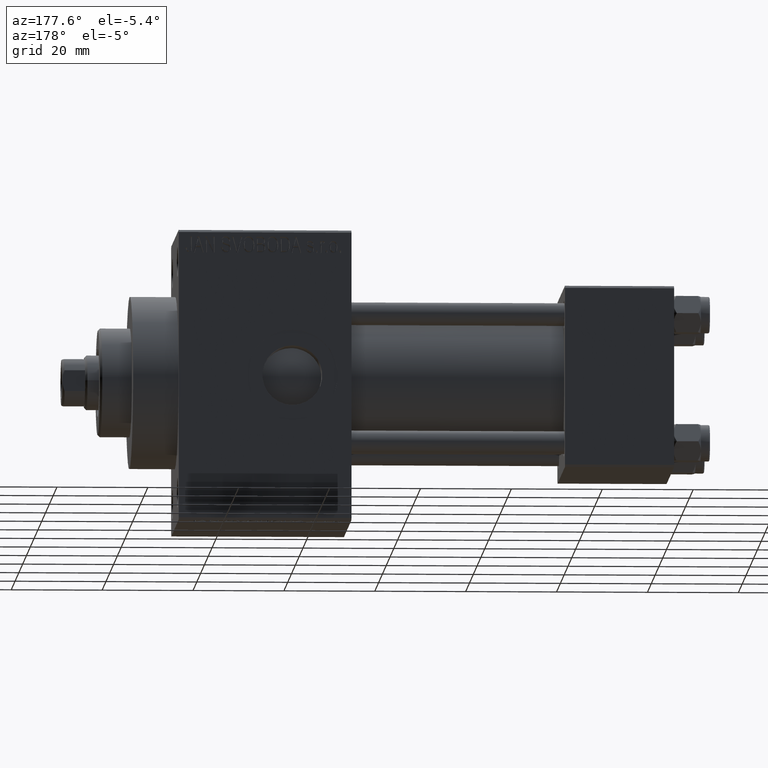
[diagram: clean part render]
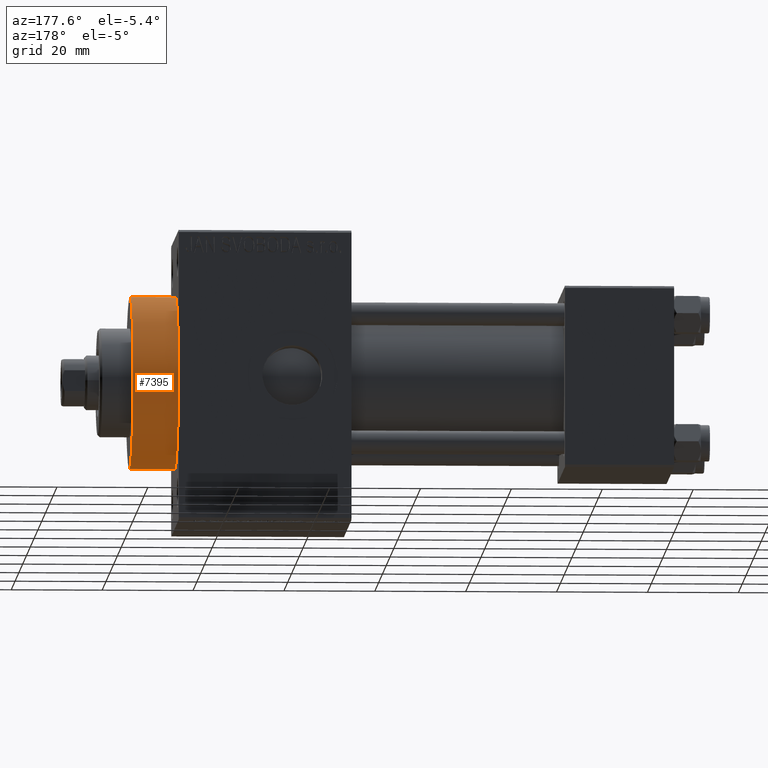
[diagram: same view with one face highlighted and labeled with its STEP entity id]
A machine part, auxiliary view. The second image highlights one B-rep face of the part: STEP entity #7395.
In plain terms, the highlighted cylindrical surface (partial cylindrical patch) has radius 19 mm, axis along (-1, -0, -0).
Its self-contained STEP definition (entity closure, byte-faithful):
#518 = AXIS2_PLACEMENT_3D ( 'NONE', #35463, #17375, #43535 ) ;
#2937 = DIRECTION ( 'NONE',  ( 0.000000000000000000, 0.000000000000000000, -1.000000000000000000 ) ) ;
#3686 = CARTESIAN_POINT ( 'NONE',  ( 109.0000000000000142, 0.000000000000000000, 19.00000000000000000 ) ) ;
#6514 = CIRCLE ( 'NONE', #25491, 19.00000000000000000 ) ;
#6738 = DIRECTION ( 'NONE',  ( 1.000000000000000000, 0.000000000000000000, 0.000000000000000000 ) ) ;
#7395 = ADVANCED_FACE ( 'NONE', ( #13274 ), #27768, .T. ) ;
#7505 = ORIENTED_EDGE ( 'NONE', *, *, #11135, .T. ) ;
#7736 = VERTEX_POINT ( 'NONE', #25766 ) ;
#11135 = EDGE_CURVE ( 'NONE', #40273, #30596, #43244, .T. ) ;
#12799 = DIRECTION ( 'NONE',  ( -1.000000000000000000, -0.000000000000000000, -0.000000000000000000 ) ) ;
#13159 = EDGE_CURVE ( 'NONE', #7736, #17704, #27311, .T. ) ;
#13274 = FACE_OUTER_BOUND ( 'NONE', #15244, .T. ) ;
#13284 = CARTESIAN_POINT ( 'NONE',  ( 119.0000000000000142, 0.000000000000000000, 19.00000000000000000 ) ) ;
#15244 = EDGE_LOOP ( 'NONE', ( #25704, #7505, #21625, #34030 ) ) ;
#16644 = AXIS2_PLACEMENT_3D ( 'NONE', #20382, #12799, #42756 ) ;
#17375 = DIRECTION ( 'NONE',  ( 1.000000000000000000, 0.000000000000000000, 0.000000000000000000 ) ) ;
#17704 = VERTEX_POINT ( 'NONE', #3686 ) ;
#20382 = CARTESIAN_POINT ( 'NONE',  ( 119.0000000000000142, 0.000000000000000000, 0.000000000000000000 ) ) ;
#21032 = CIRCLE ( 'NONE', #518, 19.00000000000000000 ) ;
#21335 = DIRECTION ( 'NONE',  ( -1.000000000000000000, -0.000000000000000000, -0.000000000000000000 ) ) ;
#21625 = ORIENTED_EDGE ( 'NONE', *, *, #37542, .T. ) ;
#22452 = CARTESIAN_POINT ( 'NONE',  ( 109.0000000000000142, 2.326828918379970970E-15, -19.00000000000000000 ) ) ;
#25491 = AXIS2_PLACEMENT_3D ( 'NONE', #35535, #6738, #2937 ) ;
#25704 = ORIENTED_EDGE ( 'NONE', *, *, #44379, .F. ) ;
#25766 = CARTESIAN_POINT ( 'NONE',  ( 119.0000000000000142, 0.000000000000000000, 19.00000000000000000 ) ) ;
#27311 = LINE ( 'NONE', #13284, #46455 ) ;
#27768 = CYLINDRICAL_SURFACE ( 'NONE', #16644, 19.00000000000000000 ) ;
#30070 = CARTESIAN_POINT ( 'NONE',  ( 119.0000000000000142, 2.326828918379970970E-15, -19.00000000000000000 ) ) ;
#30596 = VERTEX_POINT ( 'NONE', #22452 ) ;
#34030 = ORIENTED_EDGE ( 'NONE', *, *, #13159, .F. ) ;
#34222 = DIRECTION ( 'NONE',  ( -1.000000000000000000, -0.000000000000000000, -0.000000000000000000 ) ) ;
#35463 = CARTESIAN_POINT ( 'NONE',  ( 119.0000000000000142, 0.000000000000000000, 0.000000000000000000 ) ) ;
#35535 = CARTESIAN_POINT ( 'NONE',  ( 109.0000000000000142, 0.000000000000000000, 0.000000000000000000 ) ) ;
#37542 = EDGE_CURVE ( 'NONE', #30596, #17704, #6514, .T. ) ;
#39545 = VECTOR ( 'NONE', #21335, 1000.000000000000000 ) ;
#39913 = CARTESIAN_POINT ( 'NONE',  ( 119.0000000000000142, 2.326828918379970970E-15, -19.00000000000000000 ) ) ;
#40273 = VERTEX_POINT ( 'NONE', #30070 ) ;
#42756 = DIRECTION ( 'NONE',  ( 0.000000000000000000, 0.000000000000000000, 1.000000000000000000 ) ) ;
#43244 = LINE ( 'NONE', #39913, #39545 ) ;
#43535 = DIRECTION ( 'NONE',  ( 0.000000000000000000, 0.000000000000000000, -1.000000000000000000 ) ) ;
#44379 = EDGE_CURVE ( 'NONE', #40273, #7736, #21032, .T. ) ;
#46455 = VECTOR ( 'NONE', #34222, 1000.000000000000000 ) ;